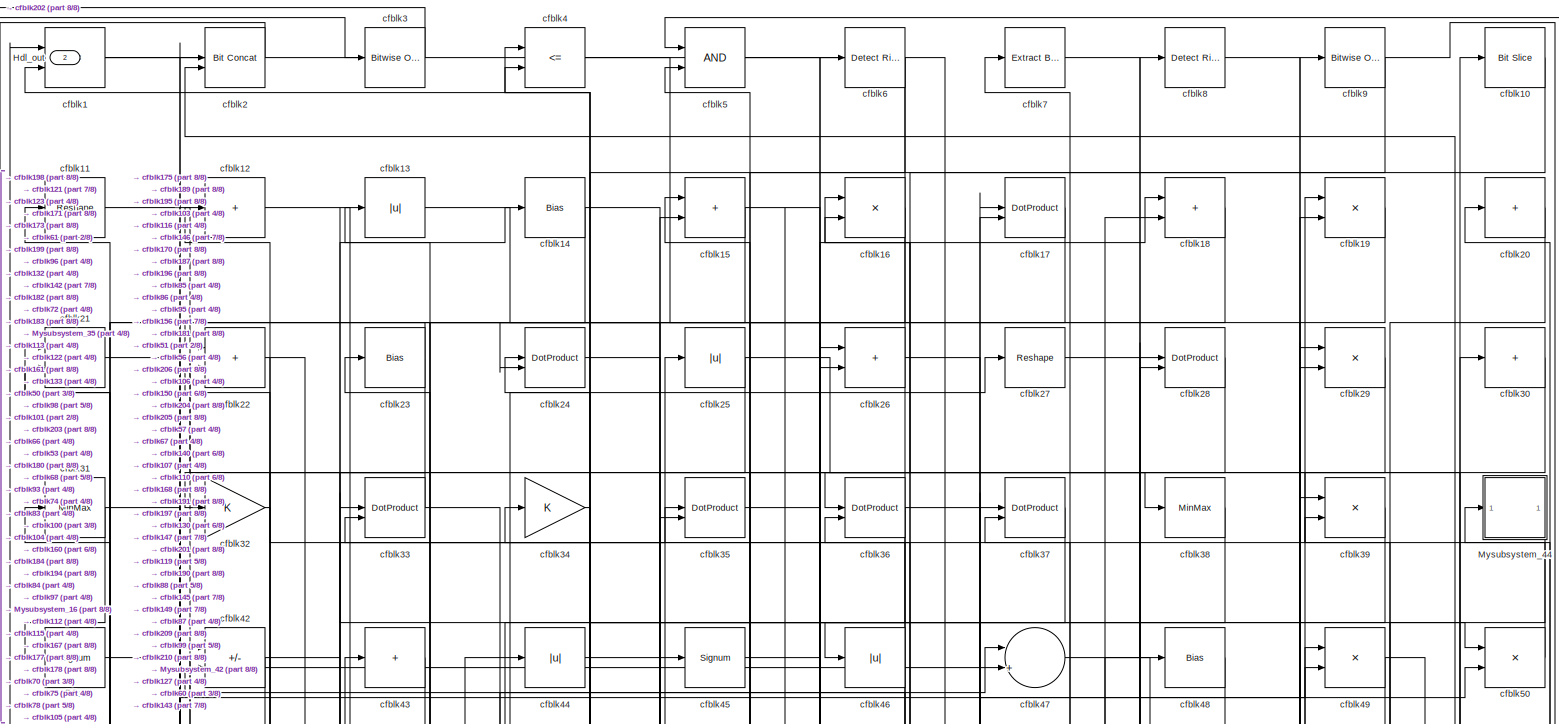
[diagram: root canvas - part 1/8, full width, top band]
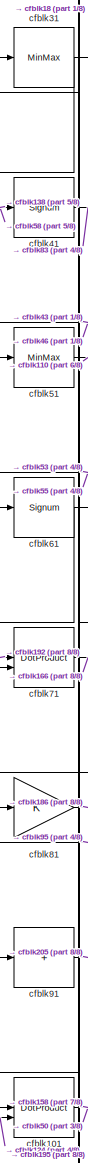
[diagram: root canvas - part 2/8, middle left region]
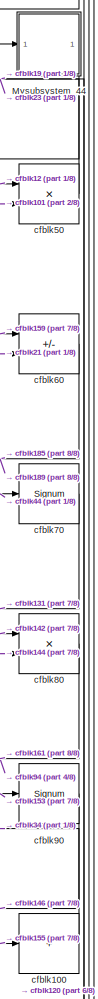
[diagram: root canvas - part 3/8, top right region]
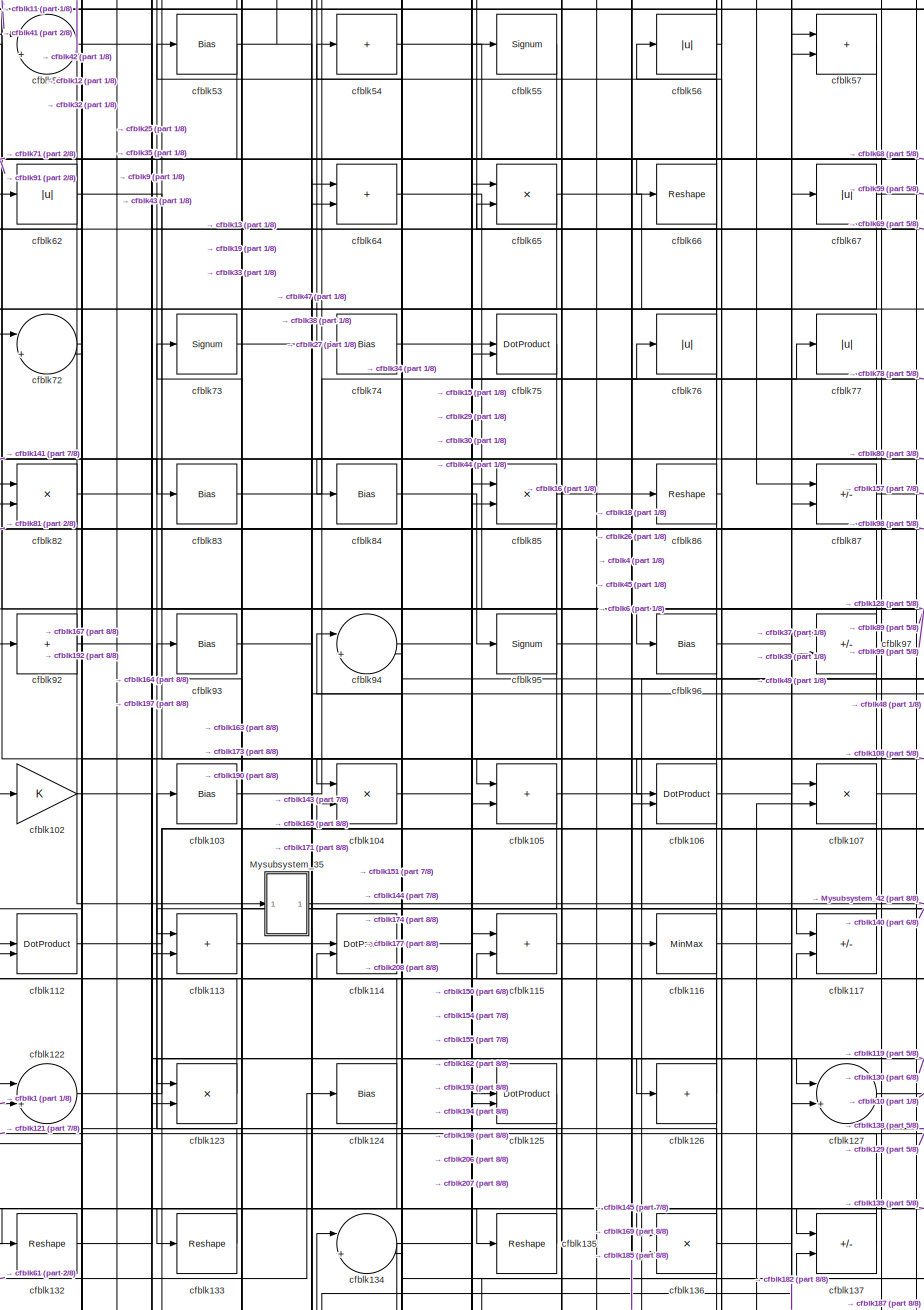
[diagram: root canvas - part 4/8, central region]
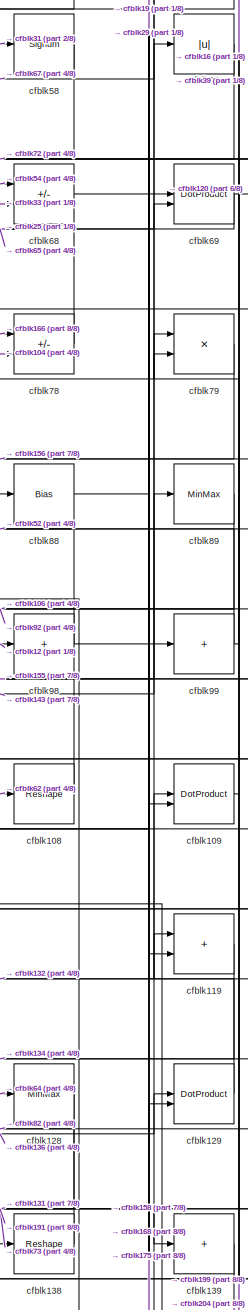
[diagram: root canvas - part 5/8, middle right region]
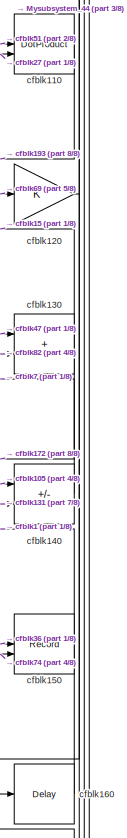
[diagram: root canvas - part 6/8, middle right region]
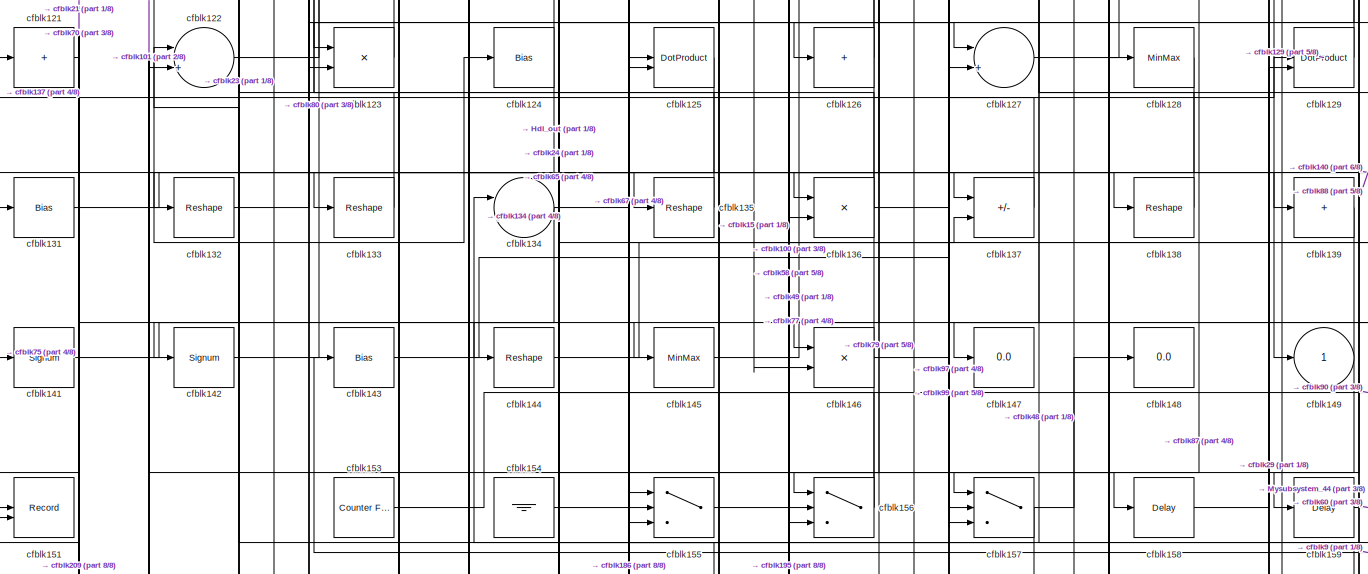
[diagram: root canvas - part 7/8, full width, bottom band]
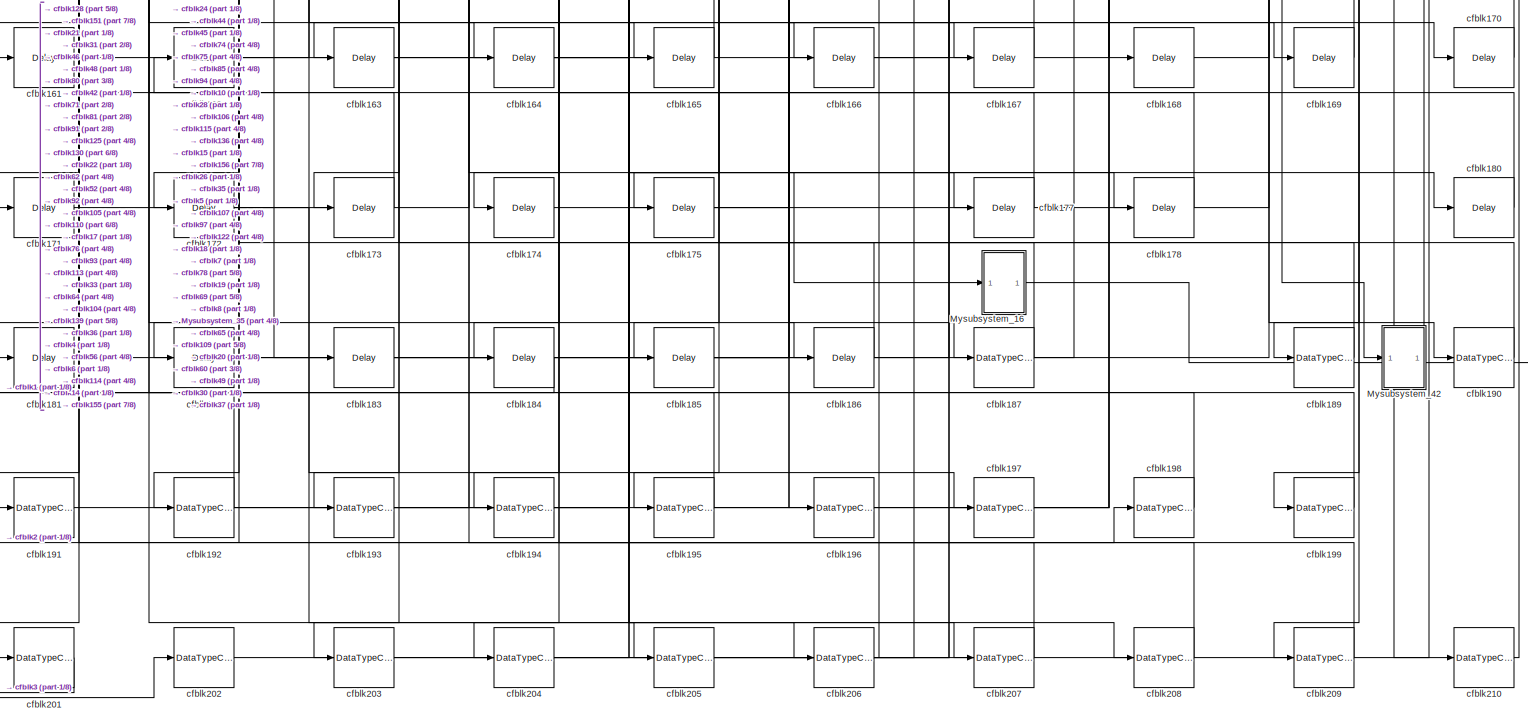
[diagram: root canvas - part 8/8, full width, bottom band]
MODEL slx_408522a5befd
KIND model
CONFIG AbsTol = auto
CONFIG EnableMultiTasking = off
CONFIG FixedStep = auto
CONFIG MaxStep = auto
CONFIG MinStep = auto
CONFIG RelTol = 1e-3
CONFIG SampleTimeConstraint = Unconstrained
CONFIG SolverName = VariableStepAuto
CONFIG StartTime = 0.0
CONFIG StopTime = 10.0
BLOCK [Outport] Hdl_out
  OutDataTypeStr = uint8
  Port = 2
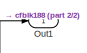
[diagram: Mysubsystem_16 - part 1/2, top left region]
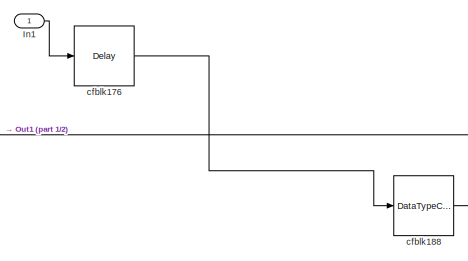
[diagram: Mysubsystem_16 - part 2/2, full width, bottom band]
BLOCK [SubSystem] Mysubsystem_16
  RTWFcnName = Mysubsystem_16
  RTWFcnNameOpts = User specified
  RTWFileNameOpts = Use function name
  RTWSystemCode = Reusable function
  TreatAsAtomicUnit = on
BLOCK [Inport] Mysubsystem_16/In1
BLOCK [Outport] Mysubsystem_16/Out1
BLOCK [Delay] Mysubsystem_16/cfblk176
  InputPortMap = u0
  SampleTime = 1
BLOCK [DataTypeConversion] Mysubsystem_16/cfblk188
  OutDataTypeStr = uint8
  RndMeth = Floor
  SaturateOnIntegerOverflow = off
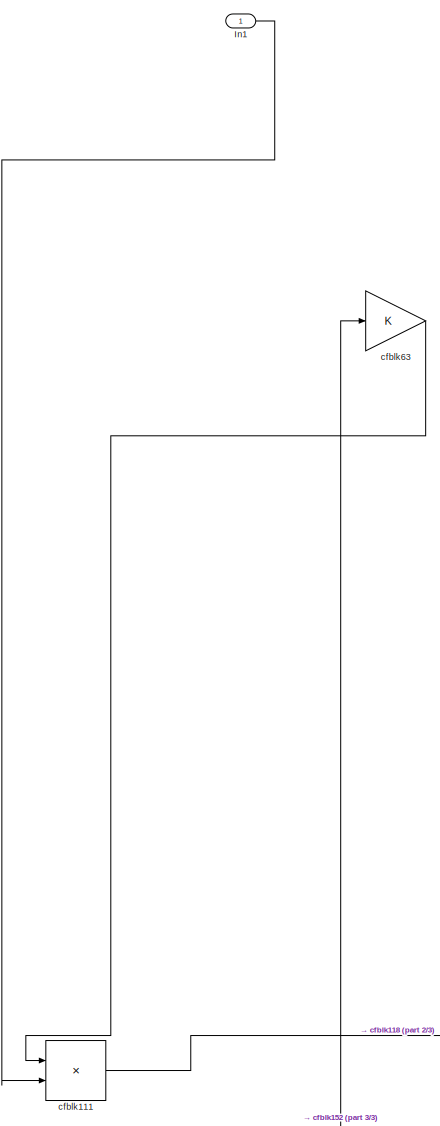
[diagram: Mysubsystem_35 - part 1/3, top left region]
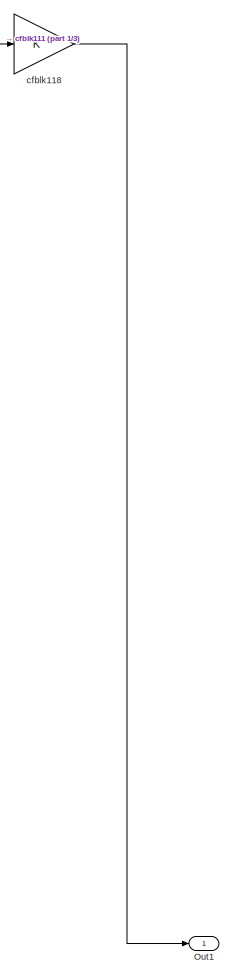
[diagram: Mysubsystem_35 - part 2/3, bottom right region]
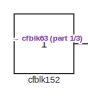
[diagram: Mysubsystem_35 - part 3/3, bottom left region]
BLOCK [SubSystem] Mysubsystem_35
  RTWFcnName = Mysubsystem_35
  RTWFcnNameOpts = User specified
  RTWFileNameOpts = Use function name
  RTWSystemCode = Reusable function
  TreatAsAtomicUnit = on
BLOCK [Inport] Mysubsystem_35/In1
BLOCK [Outport] Mysubsystem_35/Out1
BLOCK [Product] Mysubsystem_35/cfblk111
  Inputs = */
  RndMeth = Zero
  SaturateOnIntegerOverflow = on
BLOCK [Gain] Mysubsystem_35/cfblk118
BLOCK [Constant] Mysubsystem_35/cfblk152
  SampleTime = -1
BLOCK [Gain] Mysubsystem_35/cfblk63
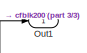
[diagram: Mysubsystem_42 - part 1/3, top left region]
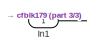
[diagram: Mysubsystem_42 - part 2/3, middle left region]
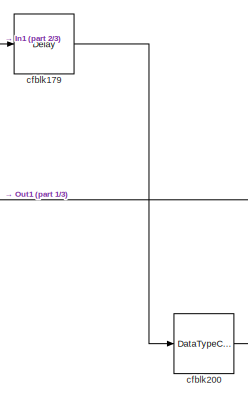
[diagram: Mysubsystem_42 - part 3/3, bottom right region]
BLOCK [SubSystem] Mysubsystem_42
  RTWFcnName = Mysubsystem_42
  RTWFcnNameOpts = User specified
  RTWFileNameOpts = Use function name
  RTWSystemCode = Reusable function
  TreatAsAtomicUnit = on
BLOCK [Inport] Mysubsystem_42/In1
BLOCK [Outport] Mysubsystem_42/Out1
BLOCK [Delay] Mysubsystem_42/cfblk179
  InputPortMap = u0
  SampleTime = 1
BLOCK [DataTypeConversion] Mysubsystem_42/cfblk200
  OutDataTypeStr = uint8
  RndMeth = Floor
  SaturateOnIntegerOverflow = off
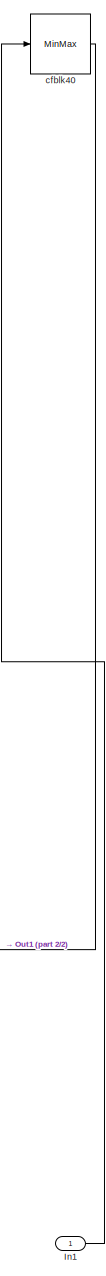
[diagram: Mysubsystem_44 - part 1/2, middle right region]
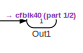
[diagram: Mysubsystem_44 - part 2/2, bottom left region]
BLOCK [SubSystem] Mysubsystem_44
  RTWFcnName = Mysubsystem_44
  RTWFcnNameOpts = User specified
  RTWFileNameOpts = Use function name
  RTWSystemCode = Reusable function
  TreatAsAtomicUnit = on
BLOCK [Inport] Mysubsystem_44/In1
BLOCK [Outport] Mysubsystem_44/Out1
BLOCK [MinMax] Mysubsystem_44/cfblk40
BLOCK [RelationalOperator] cfblk1
  InputSameDT = off
  Operator = <=
  OutDataTypeStr = boolean
BLOCK [Reference] cfblk10  REF=hdlsllib/Logic and Bit
Operations/Bit Slice
  SourceBlock = hdlsllib/Logic and Bit\nOperations/Bit Slice
  SourceType = Bit Slice
BLOCK [Sum] cfblk100
  IconShape = rectangular
  Inputs = +
  OutDataTypeStr = uint8
BLOCK [DotProduct] cfblk101
  OutDataTypeStr = uint8
BLOCK [Gain] cfblk102
  OutDataTypeStr = uint8
BLOCK [Bias] cfblk103
  Bias = 0.0
  SaturateOnIntegerOverflow = off
BLOCK [Product] cfblk104
  Inputs = */
  OutDataTypeStr = uint8
  RndMeth = Zero
  SaturateOnIntegerOverflow = on
BLOCK [Sum] cfblk105
  IconShape = rectangular
  OutDataTypeStr = uint8
BLOCK [DotProduct] cfblk106
  OutDataTypeStr = uint8
BLOCK [Product] cfblk107
  Inputs = */
  OutDataTypeStr = uint8
  RndMeth = Zero
  SaturateOnIntegerOverflow = on
BLOCK [Reshape] cfblk108
BLOCK [DotProduct] cfblk109
  OutDataTypeStr = uint8
BLOCK [Reshape] cfblk11
BLOCK [DotProduct] cfblk110
  OutDataTypeStr = uint8
BLOCK [DotProduct] cfblk112
  OutDataTypeStr = uint8
BLOCK [Sum] cfblk113
  IconShape = rectangular
  OutDataTypeStr = uint8
BLOCK [DotProduct] cfblk114
  OutDataTypeStr = uint8
BLOCK [Sum] cfblk115
  IconShape = rectangular
  OutDataTypeStr = uint8
BLOCK [MinMax] cfblk116
  OutDataTypeStr = uint8
BLOCK [Sum] cfblk117
  IconShape = rectangular
  Inputs = +-
  OutDataTypeStr = uint8
BLOCK [Sum] cfblk119
  IconShape = rectangular
  OutDataTypeStr = uint8
BLOCK [Sum] cfblk12
  IconShape = rectangular
  Inputs = +
  OutDataTypeStr = uint8
BLOCK [Gain] cfblk120
  OutDataTypeStr = uint8
BLOCK [Sum] cfblk121
  IconShape = rectangular
  Inputs = +
  OutDataTypeStr = uint8
BLOCK [Sum] cfblk122
  Inputs = |++
  OutDataTypeStr = uint8
BLOCK [Product] cfblk123
  Inputs = */
  OutDataTypeStr = uint8
  RndMeth = Zero
  SaturateOnIntegerOverflow = on
BLOCK [Bias] cfblk124
  Bias = 0.0
  SaturateOnIntegerOverflow = off
BLOCK [DotProduct] cfblk125
  OutDataTypeStr = uint8
BLOCK [Sum] cfblk126
  IconShape = rectangular
  Inputs = +
  OutDataTypeStr = uint8
BLOCK [Sum] cfblk127
  Inputs = |++
  OutDataTypeStr = uint8
BLOCK [MinMax] cfblk128
  OutDataTypeStr = uint8
BLOCK [DotProduct] cfblk129
  OutDataTypeStr = uint8
BLOCK [Abs] cfblk13
  OutDataTypeStr = uint8
  SaturateOnIntegerOverflow = off
BLOCK [Sum] cfblk130
  IconShape = rectangular
  OutDataTypeStr = uint8
BLOCK [Bias] cfblk131
  Bias = 0.0
  SaturateOnIntegerOverflow = off
BLOCK [Reshape] cfblk132
BLOCK [Reshape] cfblk133
BLOCK [Sum] cfblk134
  Inputs = |++
  OutDataTypeStr = uint8
BLOCK [Reshape] cfblk135
BLOCK [Product] cfblk136
  Inputs = */
  OutDataTypeStr = uint8
  RndMeth = Zero
  SaturateOnIntegerOverflow = on
BLOCK [Sum] cfblk137
  IconShape = rectangular
  Inputs = +-
  OutDataTypeStr = uint8
BLOCK [Reshape] cfblk138
BLOCK [Sum] cfblk139
  IconShape = rectangular
  Inputs = +
  OutDataTypeStr = uint8
BLOCK [Bias] cfblk14
  Bias = 0.0
  SaturateOnIntegerOverflow = off
BLOCK [Sum] cfblk140
  IconShape = rectangular
  Inputs = +-
  OutDataTypeStr = uint8
BLOCK [Signum] cfblk141
BLOCK [Signum] cfblk142
BLOCK [Bias] cfblk143
  Bias = 0.0
  SaturateOnIntegerOverflow = off
BLOCK [Reshape] cfblk144
BLOCK [MinMax] cfblk145
  OutDataTypeStr = uint8
BLOCK [Product] cfblk146
  Inputs = */
  OutDataTypeStr = uint8
  RndMeth = Zero
  SaturateOnIntegerOverflow = on
BLOCK [Display] cfblk147
  Decimation = 1
BLOCK [Display] cfblk148
  Decimation = 1
BLOCK [Outport] cfblk149
  OutDataTypeStr = uint8
  VectorParamsAs1DForOutWhenUnconnected = off
BLOCK [Sum] cfblk15
  IconShape = rectangular
  OutDataTypeStr = uint8
BLOCK [Record] cfblk150
  CompatibilityTag = XY
  FileSettingsInternal = {"entries":[{"content":{"excelSettings":{"content":{},"type":"Streamout.ExcelSettings"}},"type":"Streamout.FileSettingStorage","uuid":""}],"packageUris":["http:\/\/schema.mathworks.com\/mf0\/streamout_blocks\/R2020a"],"version":"1.0"}
  Layout = [1 1]
  SignalsInternal = {"entries":[{"content":{"signals":[{"content":{"blockPath":[],"dimensions":[1],"domain":"","lineColor":"#a2142f","plots":[1],"port":1,"signalID":39128,"signalName":"cfblk36"},"type":"RecordBlkView.Signal","uuid":""},{"content":{"blockPath":[],"dimensions":[1],"domain":"","lineColor":"#139fff","plots":[1],"port":2,"signalID":39131,"signalName":"cfblk74"},"type":"RecordBlkView.Signal","uuid":""}]},"...<+142ch>
  VisualizationBindings = {"xyplotplugin":{"info":[{"series":[{"bindingParametersList":[{"parameter":"X-Axis","signalID":39128,"signalName":"cfblk36"},{"parameter":"Y-Axis","signalID":39131,"signalName":"cfblk74"}],"seriesID":63062}],"subplotID":1}]}}
  st = -1
BLOCK [Record] cfblk151
  CompatibilityTag = XY
  FileSettingsInternal = {"entries":[{"content":{"excelSettings":{"content":{},"type":"Streamout.ExcelSettings"}},"type":"Streamout.FileSettingStorage","uuid":""}],"packageUris":["http:\/\/schema.mathworks.com\/mf0\/streamout_blocks\/R2020a"],"version":"1.0"}
  Layout = [1 1]
  SignalsInternal = {"entries":[{"content":{"signals":[{"content":{"blockPath":[],"dimensions":[1],"domain":"","lineColor":"#a2142f","plots":[1],"port":1,"signalID":39120,"signalName":"cfblk134"},"type":"RecordBlkView.Signal","uuid":""},{"content":{"blockPath":[],"dimensions":[1],"domain":"","lineColor":"#139fff","plots":[1],"port":2,"signalID":39123,"signalName":"cfblk209"},"type":"RecordBlkView.Signal","uuid":""}]}...<+144ch>
  VisualizationBindings = {"xyplotplugin":{"info":[{"series":[{"bindingParametersList":[{"parameter":"X-Axis","signalID":39120,"signalName":"cfblk134"},{"parameter":"Y-Axis","signalID":39123,"signalName":"cfblk209"}],"seriesID":38751}],"subplotID":1}]}}
  st = -1
BLOCK [Reference] cfblk153  REF=hdlsllib/Sources/Counter
Free-Running
  SourceBlock = hdlsllib/Sources/Counter\nFree-Running
  SourceType = Counter Free-Running
BLOCK [Ground] cfblk154
BLOCK [Switch] cfblk155
  InputSameDT = off
  OutDataTypeStr = uint8
  SaturateOnIntegerOverflow = off
BLOCK [Switch] cfblk156
  InputSameDT = off
  OutDataTypeStr = uint8
  SaturateOnIntegerOverflow = off
BLOCK [Switch] cfblk157
  InputSameDT = off
  OutDataTypeStr = uint8
  SaturateOnIntegerOverflow = off
BLOCK [Delay] cfblk158
  InputPortMap = u0
  SampleTime = 1
BLOCK [Delay] cfblk159
  InputPortMap = u0
  SampleTime = 1
BLOCK [Product] cfblk16
  Inputs = */
  OutDataTypeStr = uint8
  RndMeth = Zero
  SaturateOnIntegerOverflow = on
BLOCK [Delay] cfblk160
  InputPortMap = u0
  SampleTime = 1
BLOCK [Delay] cfblk161
  InputPortMap = u0
  SampleTime = 1
BLOCK [Delay] cfblk162
  InputPortMap = u0
  SampleTime = 1
BLOCK [Delay] cfblk163
  InputPortMap = u0
  SampleTime = 1
BLOCK [Delay] cfblk164
  InputPortMap = u0
  SampleTime = 1
BLOCK [Delay] cfblk165
  InputPortMap = u0
  SampleTime = 1
BLOCK [Delay] cfblk166
  InputPortMap = u0
  SampleTime = 1
BLOCK [Delay] cfblk167
  InputPortMap = u0
  SampleTime = 1
BLOCK [Delay] cfblk168
  InputPortMap = u0
  SampleTime = 1
BLOCK [Delay] cfblk169
  InputPortMap = u0
  SampleTime = 1
BLOCK [DotProduct] cfblk17
  OutDataTypeStr = uint8
BLOCK [Delay] cfblk170
  InputPortMap = u0
  SampleTime = 1
BLOCK [Delay] cfblk171
  InputPortMap = u0
  SampleTime = 1
BLOCK [Delay] cfblk172
  InputPortMap = u0
  SampleTime = 1
BLOCK [Delay] cfblk173
  InputPortMap = u0
  SampleTime = 1
BLOCK [Delay] cfblk174
  InputPortMap = u0
  SampleTime = 1
BLOCK [Delay] cfblk175
  InputPortMap = u0
  SampleTime = 1
BLOCK [Delay] cfblk177
  InputPortMap = u0
  SampleTime = 1
BLOCK [Delay] cfblk178
  InputPortMap = u0
  SampleTime = 1
BLOCK [Sum] cfblk18
  IconShape = rectangular
  OutDataTypeStr = uint8
BLOCK [Delay] cfblk180
  InputPortMap = u0
  SampleTime = 1
BLOCK [Delay] cfblk181
  InputPortMap = u0
  SampleTime = 1
BLOCK [Delay] cfblk182
  InputPortMap = u0
  SampleTime = 1
BLOCK [Delay] cfblk183
  InputPortMap = u0
  SampleTime = 1
BLOCK [Delay] cfblk184
  InputPortMap = u0
  SampleTime = 1
BLOCK [Delay] cfblk185
  InputPortMap = u0
  SampleTime = 1
BLOCK [Delay] cfblk186
  InputPortMap = u0
  SampleTime = 1
BLOCK [DataTypeConversion] cfblk187
  OutDataTypeStr = uint8
  RndMeth = Floor
  SaturateOnIntegerOverflow = off
BLOCK [DataTypeConversion] cfblk189
  OutDataTypeStr = uint8
  RndMeth = Floor
  SaturateOnIntegerOverflow = off
BLOCK [Product] cfblk19
  Inputs = */
  OutDataTypeStr = uint8
  RndMeth = Zero
  SaturateOnIntegerOverflow = on
BLOCK [DataTypeConversion] cfblk190
  OutDataTypeStr = uint8
  RndMeth = Floor
  SaturateOnIntegerOverflow = off
BLOCK [DataTypeConversion] cfblk191
  OutDataTypeStr = uint8
  RndMeth = Floor
  SaturateOnIntegerOverflow = off
BLOCK [DataTypeConversion] cfblk192
  OutDataTypeStr = uint8
  RndMeth = Floor
  SaturateOnIntegerOverflow = off
BLOCK [DataTypeConversion] cfblk193
  OutDataTypeStr = uint8
  RndMeth = Floor
  SaturateOnIntegerOverflow = off
BLOCK [DataTypeConversion] cfblk194
  OutDataTypeStr = uint8
  RndMeth = Floor
  SaturateOnIntegerOverflow = off
BLOCK [DataTypeConversion] cfblk195
  OutDataTypeStr = uint8
  RndMeth = Floor
  SaturateOnIntegerOverflow = off
BLOCK [DataTypeConversion] cfblk196
  OutDataTypeStr = uint8
  RndMeth = Floor
  SaturateOnIntegerOverflow = off
BLOCK [DataTypeConversion] cfblk197
  OutDataTypeStr = uint8
  RndMeth = Floor
  SaturateOnIntegerOverflow = off
BLOCK [DataTypeConversion] cfblk198
  OutDataTypeStr = uint8
  RndMeth = Floor
  SaturateOnIntegerOverflow = off
BLOCK [DataTypeConversion] cfblk199
  OutDataTypeStr = uint8
  RndMeth = Floor
  SaturateOnIntegerOverflow = off
BLOCK [Reference] cfblk2  REF=hdlsllib/Logic and Bit
Operations/Bit Concat
  SourceBlock = hdlsllib/Logic and Bit\nOperations/Bit Concat
  SourceType = Bit Concat
BLOCK [Sum] cfblk20
  IconShape = rectangular
  Inputs = +
  OutDataTypeStr = uint8
BLOCK [DataTypeConversion] cfblk201
  OutDataTypeStr = uint8
  RndMeth = Floor
  SaturateOnIntegerOverflow = off
BLOCK [DataTypeConversion] cfblk202
  OutDataTypeStr = uint8
  RndMeth = Floor
  SaturateOnIntegerOverflow = off
BLOCK [DataTypeConversion] cfblk203
  OutDataTypeStr = uint8
  RndMeth = Floor
  SaturateOnIntegerOverflow = off
BLOCK [DataTypeConversion] cfblk204
  OutDataTypeStr = uint8
  RndMeth = Floor
  SaturateOnIntegerOverflow = off
BLOCK [DataTypeConversion] cfblk205
  OutDataTypeStr = uint8
  RndMeth = Floor
  SaturateOnIntegerOverflow = off
BLOCK [DataTypeConversion] cfblk206
  OutDataTypeStr = uint8
  RndMeth = Floor
  SaturateOnIntegerOverflow = off
BLOCK [DataTypeConversion] cfblk207
  OutDataTypeStr = uint8
  RndMeth = Floor
  SaturateOnIntegerOverflow = off
BLOCK [DataTypeConversion] cfblk208
  OutDataTypeStr = uint8
  RndMeth = Floor
  SaturateOnIntegerOverflow = off
BLOCK [DataTypeConversion] cfblk209
  OutDataTypeStr = uint8
  RndMeth = Floor
  SaturateOnIntegerOverflow = off
BLOCK [Product] cfblk21
  Inputs = */
  OutDataTypeStr = uint8
  RndMeth = Zero
  SaturateOnIntegerOverflow = on
BLOCK [DataTypeConversion] cfblk210
  OutDataTypeStr = uint8
  RndMeth = Floor
  SaturateOnIntegerOverflow = off
BLOCK [Sum] cfblk22
  IconShape = rectangular
  OutDataTypeStr = uint8
BLOCK [Bias] cfblk23
  Bias = 0.0
  SaturateOnIntegerOverflow = off
BLOCK [DotProduct] cfblk24
  OutDataTypeStr = uint8
BLOCK [Abs] cfblk25
  OutDataTypeStr = uint8
  SaturateOnIntegerOverflow = off
BLOCK [Sum] cfblk26
  IconShape = rectangular
  OutDataTypeStr = uint8
BLOCK [Reshape] cfblk27
BLOCK [DotProduct] cfblk28
  OutDataTypeStr = uint8
BLOCK [Product] cfblk29
  Inputs = */
  OutDataTypeStr = uint8
  RndMeth = Zero
  SaturateOnIntegerOverflow = on
BLOCK [Reference] cfblk3  REF=simulink/Logic and Bit
Operations/Bitwise
Operator
  LibrarySourceBlock = hdlsllib/Logic and Bit\nOperations/Bitwise\nOperator
  SourceBlock = simulink/Logic and Bit\nOperations/Bitwise\nOperator
  SourceType = Bitwise Operator
BLOCK [Sum] cfblk30
  IconShape = rectangular
  Inputs = +
  OutDataTypeStr = uint8
BLOCK [MinMax] cfblk31
  OutDataTypeStr = uint8
BLOCK [Gain] cfblk32
  OutDataTypeStr = uint8
BLOCK [DotProduct] cfblk33
  OutDataTypeStr = uint8
BLOCK [Gain] cfblk34
  OutDataTypeStr = uint8
BLOCK [DotProduct] cfblk35
  OutDataTypeStr = uint8
BLOCK [DotProduct] cfblk36
  OutDataTypeStr = uint8
BLOCK [DotProduct] cfblk37
  OutDataTypeStr = uint8
BLOCK [MinMax] cfblk38
  OutDataTypeStr = uint8
BLOCK [Product] cfblk39
  Inputs = */
  OutDataTypeStr = uint8
  RndMeth = Zero
  SaturateOnIntegerOverflow = on
BLOCK [RelationalOperator] cfblk4
  InputSameDT = off
  Operator = <=
  OutDataTypeStr = boolean
BLOCK [Signum] cfblk41
BLOCK [Sum] cfblk42
  IconShape = rectangular
  Inputs = +-
  OutDataTypeStr = uint8
BLOCK [Sum] cfblk43
  IconShape = rectangular
  Inputs = +
  OutDataTypeStr = uint8
BLOCK [Abs] cfblk44
  OutDataTypeStr = uint8
  SaturateOnIntegerOverflow = off
BLOCK [Signum] cfblk45
BLOCK [Abs] cfblk46
  OutDataTypeStr = uint8
  SaturateOnIntegerOverflow = off
BLOCK [Sum] cfblk47
  Inputs = |++
  OutDataTypeStr = uint8
BLOCK [Bias] cfblk48
  Bias = 0.0
  SaturateOnIntegerOverflow = off
BLOCK [Product] cfblk49
  Inputs = */
  OutDataTypeStr = uint8
  RndMeth = Zero
  SaturateOnIntegerOverflow = on
BLOCK [Logic] cfblk5
  AllPortsSameDT = off
  OutDataTypeStr = boolean
BLOCK [Product] cfblk50
  Inputs = */
  OutDataTypeStr = uint8
  RndMeth = Zero
  SaturateOnIntegerOverflow = on
BLOCK [MinMax] cfblk51
  OutDataTypeStr = uint8
BLOCK [Sum] cfblk52
  Inputs = |++
  OutDataTypeStr = uint8
BLOCK [Bias] cfblk53
  Bias = 0.0
  SaturateOnIntegerOverflow = off
BLOCK [Sum] cfblk54
  IconShape = rectangular
  Inputs = +
  OutDataTypeStr = uint8
BLOCK [Signum] cfblk55
BLOCK [Abs] cfblk56
  OutDataTypeStr = uint8
  SaturateOnIntegerOverflow = off
BLOCK [Sum] cfblk57
  IconShape = rectangular
  OutDataTypeStr = uint8
BLOCK [Signum] cfblk58
BLOCK [Abs] cfblk59
  OutDataTypeStr = uint8
  SaturateOnIntegerOverflow = off
BLOCK [Reference] cfblk6  REF=hdlsllib/Logic and Bit
Operations/Detect Rise
Positive
  SourceBlock = hdlsllib/Logic and Bit\nOperations/Detect Rise\nPositive
  SourceType = Detect Rise Positive
BLOCK [Sum] cfblk60
  IconShape = rectangular
  Inputs = +-
  OutDataTypeStr = uint8
BLOCK [Signum] cfblk61
BLOCK [Abs] cfblk62
  OutDataTypeStr = uint8
  SaturateOnIntegerOverflow = off
BLOCK [Sum] cfblk64
  IconShape = rectangular
  OutDataTypeStr = uint8
BLOCK [Product] cfblk65
  Inputs = */
  OutDataTypeStr = uint8
  RndMeth = Zero
  SaturateOnIntegerOverflow = on
BLOCK [Reshape] cfblk66
BLOCK [Abs] cfblk67
  OutDataTypeStr = uint8
  SaturateOnIntegerOverflow = off
BLOCK [Sum] cfblk68
  IconShape = rectangular
  Inputs = +-
  OutDataTypeStr = uint8
BLOCK [DotProduct] cfblk69
  OutDataTypeStr = uint8
BLOCK [Reference] cfblk7  REF=simulink/Logic and Bit
Operations/Extract Bits
  LibrarySourceBlock = hdlsllib/Logic and Bit\nOperations/Extract Bits
  SourceBlock = simulink/Logic and Bit\nOperations/Extract Bits
  SourceType = Extract Bits
BLOCK [Signum] cfblk70
BLOCK [DotProduct] cfblk71
  OutDataTypeStr = uint8
BLOCK [Sum] cfblk72
  Inputs = |++
  OutDataTypeStr = uint8
BLOCK [Signum] cfblk73
BLOCK [Bias] cfblk74
  Bias = 0.0
  SaturateOnIntegerOverflow = off
BLOCK [DotProduct] cfblk75
  OutDataTypeStr = uint8
BLOCK [Abs] cfblk76
  OutDataTypeStr = uint8
  SaturateOnIntegerOverflow = off
BLOCK [Abs] cfblk77
  OutDataTypeStr = uint8
  SaturateOnIntegerOverflow = off
BLOCK [Sum] cfblk78
  IconShape = rectangular
  Inputs = +-
  OutDataTypeStr = uint8
BLOCK [Product] cfblk79
  Inputs = */
  OutDataTypeStr = uint8
  RndMeth = Zero
  SaturateOnIntegerOverflow = on
BLOCK [Reference] cfblk8  REF=hdlsllib/Logic and Bit
Operations/Detect Rise
Positive
  SourceBlock = hdlsllib/Logic and Bit\nOperations/Detect Rise\nPositive
  SourceType = Detect Rise Positive
BLOCK [Product] cfblk80
  Inputs = */
  OutDataTypeStr = uint8
  RndMeth = Zero
  SaturateOnIntegerOverflow = on
BLOCK [Gain] cfblk81
  OutDataTypeStr = uint8
BLOCK [Product] cfblk82
  Inputs = */
  OutDataTypeStr = uint8
  RndMeth = Zero
  SaturateOnIntegerOverflow = on
BLOCK [Bias] cfblk83
  Bias = 0.0
  SaturateOnIntegerOverflow = off
BLOCK [Bias] cfblk84
  Bias = 0.0
  SaturateOnIntegerOverflow = off
BLOCK [Product] cfblk85
  Inputs = */
  OutDataTypeStr = uint8
  RndMeth = Zero
  SaturateOnIntegerOverflow = on
BLOCK [Reshape] cfblk86
BLOCK [Sum] cfblk87
  IconShape = rectangular
  Inputs = +-
  OutDataTypeStr = uint8
BLOCK [Bias] cfblk88
  Bias = 0.0
  SaturateOnIntegerOverflow = off
BLOCK [MinMax] cfblk89
  OutDataTypeStr = uint8
BLOCK [Reference] cfblk9  REF=simulink/Logic and Bit
Operations/Bitwise
Operator
  LibrarySourceBlock = hdlsllib/Logic and Bit\nOperations/Bitwise\nOperator
  SourceBlock = simulink/Logic and Bit\nOperations/Bitwise\nOperator
  SourceType = Bitwise Operator
BLOCK [Signum] cfblk90
BLOCK [Sum] cfblk91
  IconShape = rectangular
  Inputs = +
  OutDataTypeStr = uint8
BLOCK [Sum] cfblk92
  IconShape = rectangular
  Inputs = +
  OutDataTypeStr = uint8
BLOCK [Bias] cfblk93
  Bias = 0.0
  SaturateOnIntegerOverflow = off
BLOCK [Sum] cfblk94
  Inputs = |++
  OutDataTypeStr = uint8
BLOCK [Signum] cfblk95
BLOCK [Bias] cfblk96
  Bias = 0.0
  SaturateOnIntegerOverflow = off
BLOCK [Sum] cfblk97
  IconShape = rectangular
  Inputs = +-
  OutDataTypeStr = uint8
BLOCK [Sum] cfblk98
  IconShape = rectangular
  Inputs = +
  OutDataTypeStr = uint8
BLOCK [Sum] cfblk99
  IconShape = rectangular
  Inputs = +
  OutDataTypeStr = uint8
LINE Mysubsystem_16/In1:1 -> Mysubsystem_16/cfblk176:1
LINE Mysubsystem_16/cfblk176:1 -> Mysubsystem_16/cfblk188:1
LINE Mysubsystem_16/cfblk188:1 -> Mysubsystem_16/Out1:1
LINE Mysubsystem_16:1 -> cfblk5:1
LINE Mysubsystem_35/In1:1 -> Mysubsystem_35/cfblk111:2
LINE Mysubsystem_35/cfblk111:1 -> Mysubsystem_35/cfblk118:1
LINE Mysubsystem_35/cfblk118:1 -> Mysubsystem_35/Out1:1
LINE Mysubsystem_35/cfblk152:1 -> Mysubsystem_35/cfblk63:1
LINE Mysubsystem_35/cfblk63:1 -> Mysubsystem_35/cfblk111:1
LINE Mysubsystem_35:1 -> Mysubsystem_42:1
LINE Mysubsystem_42/In1:1 -> Mysubsystem_42/cfblk179:1
LINE Mysubsystem_42/cfblk179:1 -> Mysubsystem_42/cfblk200:1
LINE Mysubsystem_42/cfblk200:1 -> Mysubsystem_42/Out1:1
LINE Mysubsystem_42:1 -> cfblk2:2
LINE Mysubsystem_44/In1:1 -> Mysubsystem_44/cfblk40:1
LINE Mysubsystem_44/cfblk40:1 -> Mysubsystem_44/Out1:1
LINE Mysubsystem_44:1 -> cfblk159:1
LINE cfblk100:1 -> cfblk34:1
NET cfblk101:1 -> cfblk158:1, cfblk50:2
LINE cfblk102:1 -> cfblk135:1
LINE cfblk103:1 -> cfblk6:1
LINE cfblk104:1 -> cfblk78:2
NET cfblk105:1 -> cfblk140:1, cfblk173:1
LINE cfblk106:1 -> cfblk37:1
NET cfblk107:1 -> cfblk126:1, cfblk48:1
LINE cfblk108:1 -> cfblk54:1
NET cfblk109:1 -> cfblk199:1, cfblk79:2
LINE cfblk10:1 -> cfblk175:1
LINE cfblk110:1 -> cfblk193:1
NET cfblk112:1 -> cfblk15:2, cfblk29:1
LINE cfblk113:1 -> cfblk165:1
LINE cfblk114:1 -> cfblk206:1
LINE cfblk115:1 -> cfblk169:1
LINE cfblk116:1 -> cfblk57:1
LINE cfblk117:1 -> cfblk56:1
LINE cfblk119:1 -> cfblk134:2
LINE cfblk11:1 -> cfblk96:1
NET cfblk120:1 -> Mysubsystem_44:1, cfblk160:1
LINE cfblk121:1 -> cfblk21:1
NET cfblk122:1 -> cfblk35:1, cfblk9:1
LINE cfblk123:1 -> cfblk11:1
NET cfblk124:1 -> cfblk112:2, cfblk133:1
LINE cfblk125:1 -> cfblk192:1
LINE cfblk126:1 -> cfblk73:1
LINE cfblk127:1 -> cfblk10:1
LINE cfblk128:1 -> cfblk191:1
LINE cfblk129:1 -> cfblk109:1
NET cfblk12:1 -> cfblk50:1, cfblk98:1
NET cfblk130:1 -> cfblk15:1, cfblk172:1
NET cfblk131:1 -> cfblk140:2, cfblk88:1
NET cfblk132:1 -> cfblk117:2, cfblk119:1, cfblk69:2
LINE cfblk133:1 -> cfblk43:1
NET cfblk134:1 -> cfblk151:1, cfblk76:1
LINE cfblk135:1 -> cfblk103:1
NET cfblk136:1 -> cfblk115:2, cfblk129:1, cfblk72:2
LINE cfblk137:1 -> cfblk121:1
LINE cfblk138:1 -> cfblk82:1
LINE cfblk139:1 -> cfblk204:1
LINE cfblk13:1 -> cfblk115:1
LINE cfblk140:1 -> cfblk7:1
LINE cfblk141:1 -> cfblk145:1
LINE cfblk142:1 -> cfblk80:1
NET cfblk143:1 -> cfblk97:1, cfblk99:1
LINE cfblk144:1 -> cfblk80:2
NET cfblk145:1 -> cfblk49:1, cfblk77:1
LINE cfblk146:1 -> cfblk157:2
NET cfblk14:1 -> cfblk178:1, cfblk24:2
LINE cfblk153:1 -> cfblk90:1
LINE cfblk154:1 -> cfblk137:2
NET cfblk155:1 -> cfblk100:1, cfblk79:1
NET cfblk156:1 -> Hdl_out:1, cfblk24:1
NET cfblk157:1 -> cfblk134:1, cfblk148:1
LINE cfblk158:1 -> cfblk129:2
LINE cfblk159:1 -> cfblk60:1
NET cfblk15:1 -> cfblk146:2, cfblk170:1, cfblk171:1
LINE cfblk160:1 -> cfblk1:2
LINE cfblk161:1 -> cfblk33:1
LINE cfblk162:1 -> cfblk75:1
LINE cfblk163:1 -> cfblk85:2
LINE cfblk164:1 -> cfblk107:1
LINE cfblk165:1 -> cfblk94:1
LINE cfblk166:1 -> cfblk78:1
LINE cfblk167:1 -> cfblk122:1
LINE cfblk168:1 -> cfblk109:2
LINE cfblk169:1 -> cfblk65:1
LINE cfblk16:1 -> cfblk105:1
LINE cfblk170:1 -> cfblk37:2
LINE cfblk171:1 -> cfblk64:1
LINE cfblk172:1 -> cfblk208:1
LINE cfblk173:1 -> cfblk21:2
LINE cfblk174:1 -> cfblk106:2
LINE cfblk175:1 -> cfblk69:1
LINE cfblk177:1 -> cfblk104:2
LINE cfblk178:1 -> cfblk42:1
LINE cfblk17:1 -> cfblk203:1
LINE cfblk180:1 -> cfblk4:2
LINE cfblk181:1 -> cfblk26:2
LINE cfblk182:1 -> cfblk97:2
LINE cfblk183:1 -> cfblk19:2
LINE cfblk184:1 -> cfblk1:1
LINE cfblk185:1 -> cfblk136:2
LINE cfblk186:1 -> cfblk155:1
NET cfblk187:1 -> cfblk18:2, cfblk62:1
LINE cfblk189:1 -> cfblk5:2
LINE cfblk18:1 -> cfblk61:1
LINE cfblk190:1 -> cfblk93:1
LINE cfblk191:1 -> cfblk8:1
NET cfblk192:1 -> cfblk64:2, cfblk71:1
LINE cfblk193:1 -> cfblk125:1
LINE cfblk194:1 -> cfblk125:2
NET cfblk195:1 -> cfblk156:3, cfblk31:1
LINE cfblk196:1 -> cfblk28:1
LINE cfblk197:1 -> cfblk28:2
LINE cfblk198:1 -> cfblk85:1
LINE cfblk199:1 -> cfblk2:1
NET cfblk19:1 -> cfblk119:2, cfblk123:1
LINE cfblk1:1 -> cfblk122:2
LINE cfblk201:1 -> cfblk3:1
LINE cfblk202:1 -> cfblk45:1
NET cfblk203:1 -> cfblk30:1, cfblk35:2
LINE cfblk204:1 -> cfblk17:1
LINE cfblk205:1 -> cfblk17:2
NET cfblk206:1 -> cfblk107:2, cfblk36:2
LINE cfblk207:1 -> cfblk114:1
LINE cfblk208:1 -> cfblk114:2
NET cfblk209:1 -> cfblk151:2, cfblk162:1
LINE cfblk20:1 -> cfblk209:1
LINE cfblk210:1 -> cfblk20:1
NET cfblk21:1 -> cfblk47:2, cfblk60:2
NET cfblk22:1 -> cfblk182:1, cfblk183:1
NET cfblk23:1 -> cfblk142:1, cfblk22:1
NET cfblk24:1 -> Mysubsystem_16:1, cfblk177:1
NET cfblk25:1 -> cfblk113:2, cfblk38:1
LINE cfblk26:1 -> cfblk67:1
LINE cfblk27:1 -> cfblk110:2
LINE cfblk28:1 -> cfblk195:1
LINE cfblk29:1 -> cfblk149:1
LINE cfblk2:1 -> cfblk198:1
LINE cfblk30:1 -> cfblk75:2
NET cfblk31:1 -> cfblk138:1, cfblk41:1, cfblk58:1
LINE cfblk32:1 -> cfblk132:1
NET cfblk33:1 -> cfblk180:1, cfblk32:1, cfblk68:2
LINE cfblk34:1 -> cfblk84:1
LINE cfblk35:1 -> cfblk196:1
NET cfblk36:1 -> cfblk150:1, cfblk194:1
LINE cfblk37:1 -> cfblk104:1
LINE cfblk38:1 -> cfblk74:1
NET cfblk39:1 -> cfblk46:1, cfblk57:2
LINE cfblk3:1 -> cfblk202:1
LINE cfblk41:1 -> cfblk83:1
NET cfblk42:1 -> Mysubsystem_35:1, cfblk127:1, cfblk14:1
LINE cfblk43:1 -> cfblk101:1
NET cfblk44:1 -> cfblk167:1, cfblk66:1, cfblk70:1
LINE cfblk45:1 -> cfblk116:1
NET cfblk46:1 -> cfblk181:1, cfblk22:2, cfblk51:1
LINE cfblk47:1 -> cfblk130:1
NET cfblk48:1 -> cfblk147:1, cfblk201:1
NET cfblk49:1 -> cfblk210:1, cfblk87:2
LINE cfblk4:1 -> cfblk86:1
NET cfblk50:1 -> cfblk19:1, cfblk23:1
LINE cfblk51:1 -> cfblk110:1
LINE cfblk52:1 -> cfblk164:1
NET cfblk53:1 -> cfblk117:1, cfblk44:1, cfblk71:2
LINE cfblk54:1 -> cfblk68:1
LINE cfblk55:1 -> cfblk91:1
NET cfblk56:1 -> cfblk16:1, cfblk174:1, cfblk42:2
LINE cfblk57:1 -> cfblk102:1
LINE cfblk58:1 -> cfblk156:2
LINE cfblk59:1 -> cfblk72:1
LINE cfblk5:1 -> cfblk187:1
NET cfblk60:1 -> cfblk185:1, cfblk189:1
NET cfblk61:1 -> cfblk101:2, cfblk124:1
LINE cfblk62:1 -> cfblk108:1
LINE cfblk64:1 -> cfblk128:1
NET cfblk65:1 -> cfblk127:2, cfblk144:1
NET cfblk66:1 -> cfblk13:1, cfblk82:2
NET cfblk67:1 -> cfblk155:2, cfblk59:1
LINE cfblk68:1 -> cfblk39:1
NET cfblk69:1 -> cfblk120:1, cfblk65:2
NET cfblk6:1 -> cfblk184:1, cfblk87:1
LINE cfblk70:1 -> cfblk131:1
LINE cfblk71:1 -> cfblk166:1
LINE cfblk72:1 -> cfblk12:1
NET cfblk73:1 -> cfblk137:1, cfblk139:1
NET cfblk74:1 -> cfblk150:2, cfblk207:1
LINE cfblk75:1 -> cfblk141:1
NET cfblk76:1 -> cfblk113:1, cfblk163:1, cfblk52:1
LINE cfblk77:1 -> cfblk157:3
LINE cfblk78:1 -> cfblk25:1
LINE cfblk79:1 -> cfblk156:1
LINE cfblk7:1 -> cfblk168:1
NET cfblk80:1 -> cfblk161:1, cfblk94:2
LINE cfblk81:1 -> cfblk186:1
LINE cfblk82:1 -> cfblk130:2
LINE cfblk83:1 -> cfblk27:1
LINE cfblk84:1 -> cfblk95:1
NET cfblk85:1 -> cfblk123:2, cfblk26:1
LINE cfblk86:1 -> cfblk136:1
LINE cfblk87:1 -> cfblk157:1
LINE cfblk88:1 -> cfblk29:2
LINE cfblk89:1 -> cfblk106:1
LINE cfblk8:1 -> cfblk190:1
LINE cfblk90:1 -> cfblk146:1
LINE cfblk91:1 -> cfblk205:1
LINE cfblk92:1 -> cfblk197:1
NET cfblk93:1 -> cfblk105:2, cfblk47:1, cfblk53:1
LINE cfblk94:1 -> cfblk55:1
NET cfblk95:1 -> cfblk112:1, cfblk18:1, cfblk81:1
NET cfblk96:1 -> cfblk33:2, cfblk49:2
NET cfblk97:1 -> cfblk155:3, cfblk4:1
NET cfblk98:1 -> cfblk52:2, cfblk89:1
NET cfblk99:1 -> cfblk16:2, cfblk39:2, cfblk92:1
NET cfblk9:1 -> cfblk143:1, cfblk36:1
note: NET lines group one-source signal fan-out (src -> all destinations, sorted); 1:1 wires keep LINE
